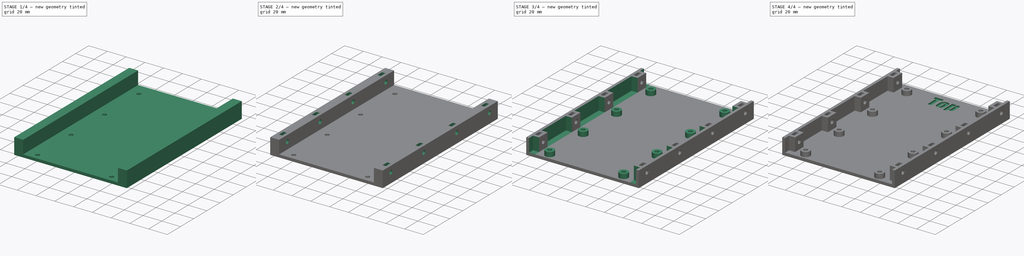
[diagram: build sequence overview — one tinted view per stage of 4, left to right]
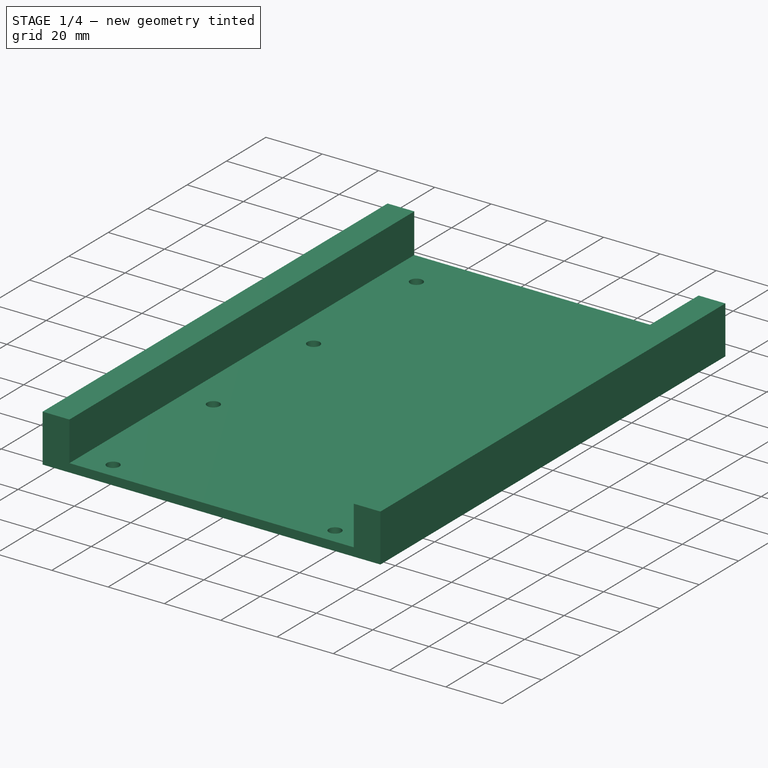
[diagram: stage 1 of 4 — iso view after this stage's code; geometry added in this stage tinted green]
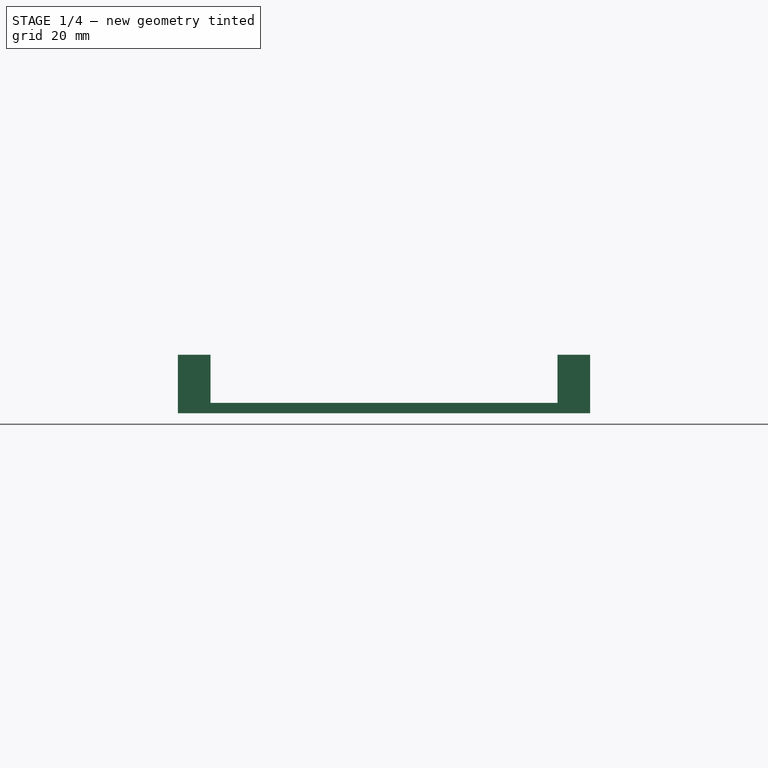
[diagram: stage 1 of 4 — front view after this stage's code; geometry added in this stage tinted green]
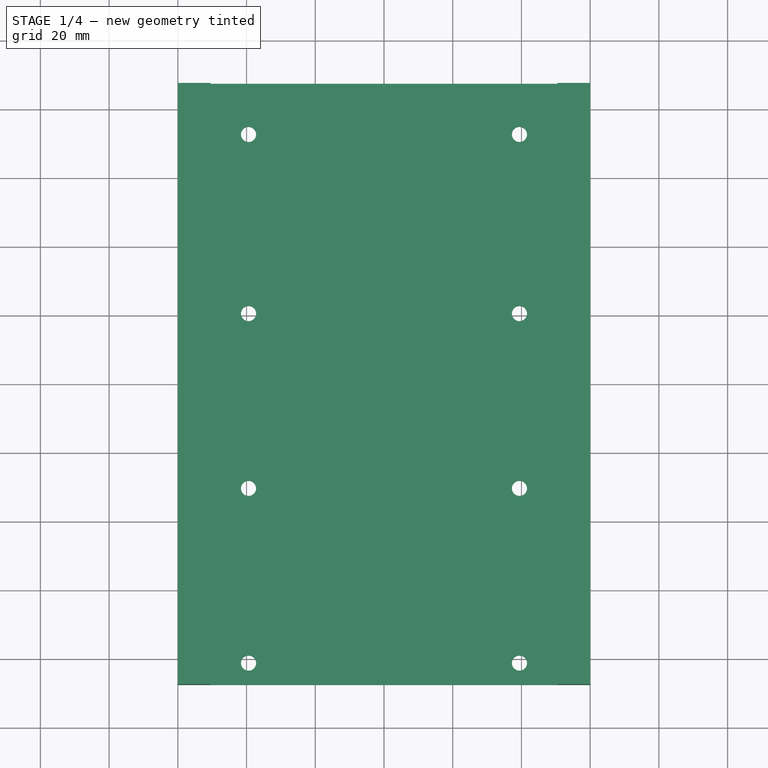
[diagram: stage 1 of 4 — top view after this stage's code; geometry added in this stage tinted green]
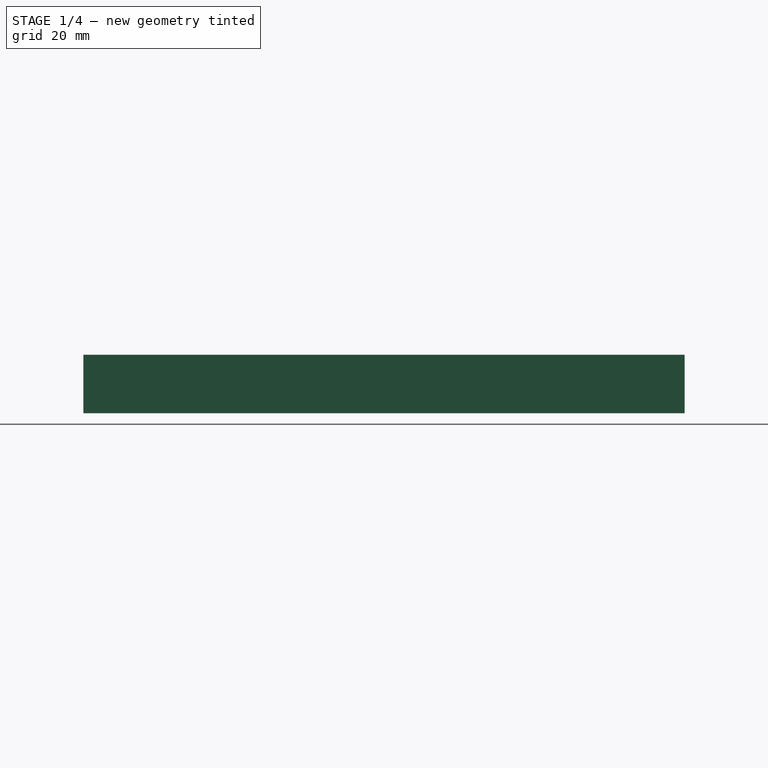
[diagram: stage 1 of 4 — right view after this stage's code; geometry added in this stage tinted green]
FCSTD DOCUMENT  (FreeCAD 0.19R14555 (Git shallow))
Label: V3 Basetray
License: All rights reserved
LicenseURL: http://en.wikipedia.org/wiki/All_rights_reserved
objects: Sketcher::SketchObject×7, PartDesign::Pocket×6, PartDesign::Mirrored×3, PartDesign::Pad×2, PartDesign::Chamfer×2, Part::Part2DObjectPython×1, PartDesign::Body×1
note: 32 computed .brp shape members not serialized (recipe doc carries the construction recipe); baked Part::Feature solids carry a one-line shape summary decoded from their .brp

FEATURE [Sketcher::SketchObject] Sketch  label="Base tray footprint"
  FullyConstrained = true
  MapMode = 5
  Support = -> [XY_Plane]
  sketch-geometry (4):
    g0: LineSegment StartX=-60 StartY=87.5 StartZ=0 EndX=60 EndY=87.5 EndZ=0
    g1: LineSegment StartX=60 StartY=87.5 StartZ=0 EndX=60 EndY=-87.5 EndZ=0
    g2: LineSegment StartX=60 StartY=-87.5 StartZ=0 EndX=-60 EndY=-87.5 EndZ=0
    g3: LineSegment StartX=-60 StartY=-87.5 StartZ=0 EndX=-60 EndY=87.5 EndZ=0
  constraints (10):
    c: Coincident(g0,g1)
    c: Coincident(g1,g2)
    c: Coincident(g2,g3)
    c: Coincident(g3,g0)
    c: Horizontal(g2)
    c: Vertical(g1)
    c: Symmetric(g0,g0,g-2)
    c: Symmetric(g0,g2,g-1)
    c: Distance(g0) = 120
    c: Distance(g3) = 175
FEATURE [PartDesign::Pad] Pad  label="Make Basetray"
  Direction = (1,1,1)
  Length = 17
  Length2 = 100
  Profile = -> Sketch
  Type = 0
FEATURE [Sketcher::SketchObject] Sketch001  label="Base Tray Hole pattern"
  ExternalGeometry = -> [Pad]
  FullyConstrained = true
  MapMode = 5
  Placement = pos=(0,0,17) rot=(0,0,1;0rad)
  Support = -> [Pad]
  sketch-geometry (11):
    g0: Circle CenterX=-39.425 CenterY=-81.1382 CenterZ=0 NormalX=0 NormalY=0 NormalZ=1 AngleXU=0 Radius=2.2
    g1: Circle CenterX=-39.425 CenterY=-30.2682 CenterZ=0 NormalX=0 NormalY=0 NormalZ=1 AngleXU=0 Radius=2.2
    g2: Circle CenterX=-39.425 CenterY=20.6018 CenterZ=0 NormalX=0 NormalY=0 NormalZ=1 AngleXU=0 Radius=2.2
    g3: Circle CenterX=-39.425 CenterY=72.7458 CenterZ=0 NormalX=0 NormalY=0 NormalZ=1 AngleXU=0 Radius=2.2
    g4: Circle CenterX=39.425 CenterY=72.7458 CenterZ=0 NormalX=0 NormalY=0 NormalZ=1 AngleXU=0 Radius=2.2
    g5: Circle CenterX=39.425 CenterY=20.6018 CenterZ=0 NormalX=0 NormalY=0 NormalZ=1 AngleXU=0 Radius=2.2
    g6: Circle CenterX=39.425 CenterY=-30.2682 CenterZ=0 NormalX=0 NormalY=0 NormalZ=1 AngleXU=0 Radius=2.2
    g7: Circle CenterX=39.425 CenterY=-81.1382 CenterZ=0 NormalX=0 NormalY=0 NormalZ=1 AngleXU=0 Radius=2.2
    g8: LineSegment StartX=-39.425 StartY=-81.1382 StartZ=0 EndX=-39.425 EndY=-30.2682 EndZ=0
    g9: LineSegment StartX=-39.425 StartY=-30.2682 StartZ=0 EndX=-39.425 EndY=20.6018 EndZ=0
    g10: LineSegment StartX=-39.425 StartY=20.6018 StartZ=0 EndX=-39.425 EndY=72.7458 EndZ=0
  constraints (26):
    c: Radius(g0) = 2.2
    c: Equal(g0,g7)
    c: Equal(g0,g1)
    c: Equal(g0,g6)
    c: Equal(g0,g5)
    c: Equal(g0,g2)
    c: Equal(g0,g3)
    c: Equal(g0,g4)
    c: Symmetric(g3,g4,g-2)
    c: Symmetric(g2,g5,g-2)
    c: Symmetric(g1,g6,g-2)
    c: Symmetric(g0,g7,g-2)
    c: Coincident(g8,g9)
    c: Coincident(g9,g10)
    c: Coincident(g10,g3)
    c: Coincident(g9,g2)
    c: Coincident(g8,g1)
    c: Coincident(g0,g8)
    c: DistanceY(g-3,g0) = 6.3618
    c: DistanceX(g0,g7) = 78.85
    c: Vertical(g8)
    c: Vertical(g9)
    c: Vertical(g10)
    c: Distance(g8) = 50.87
    c: Distance(g9) = 50.87
    c: Distance(g10) = 52.144
FEATURE [PartDesign::Pocket] Pocket  label="Make PCB Mounting Holes"
  BaseFeature = -> Pad
  Length = 5
  Length2 = 100
  Profile = -> Sketch001
  Type = 1
FEATURE [Sketcher::SketchObject] Sketch002  label="Center space cutout spec for PCB"
  ExternalGeometry = -> [Pocket]
  FullyConstrained = true
  MapMode = 5
  Placement = pos=(0,-87.5,0) rot=(1,0,0;1.5708rad)
  Support = -> [Pocket]
  sketch-geometry (4):
    g0: LineSegment StartX=-50.5 StartY=17 StartZ=0 EndX=50.5 EndY=17 EndZ=0
    g1: LineSegment StartX=50.5 StartY=17 StartZ=0 EndX=50.5 EndY=3 EndZ=0
    g2: LineSegment StartX=50.5 StartY=3 StartZ=0 EndX=-50.5 EndY=3 EndZ=0
    g3: LineSegment StartX=-50.5 StartY=3 StartZ=0 EndX=-50.5 EndY=17 EndZ=0
  constraints (11):
    c: Coincident(g0,g1)
    c: Coincident(g1,g2)
    c: Coincident(g2,g3)
    c: Coincident(g3,g0)
    c: Horizontal(g0)
    c: Vertical(g1)
    c: Vertical(g3)
    c: DistanceY(g-3,g1) = 3
    c: Symmetric(g2,g1,g-2)
    c: DistanceX(g1,g-3) = 9.5
    c: PointOnObject(g0,g-4)
FEATURE [PartDesign::Pocket] Pocket001  label="Make center space for PCB"
  BaseFeature = -> Pocket
  Length = 5
  Length2 = 100
  Profile = -> Sketch002
  Type = 1
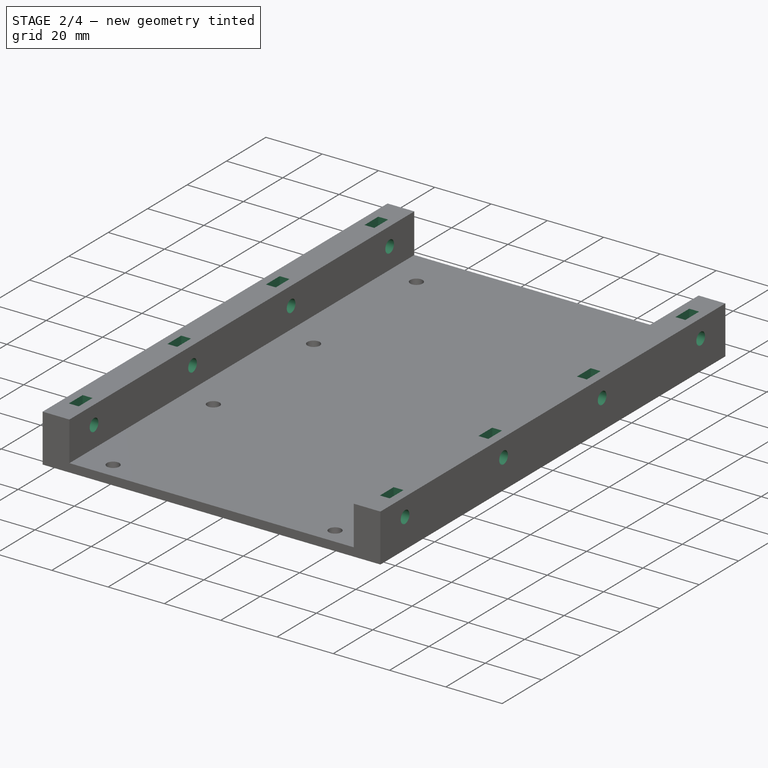
[diagram: stage 2 of 4 — iso view after this stage's code; geometry added in this stage tinted green]
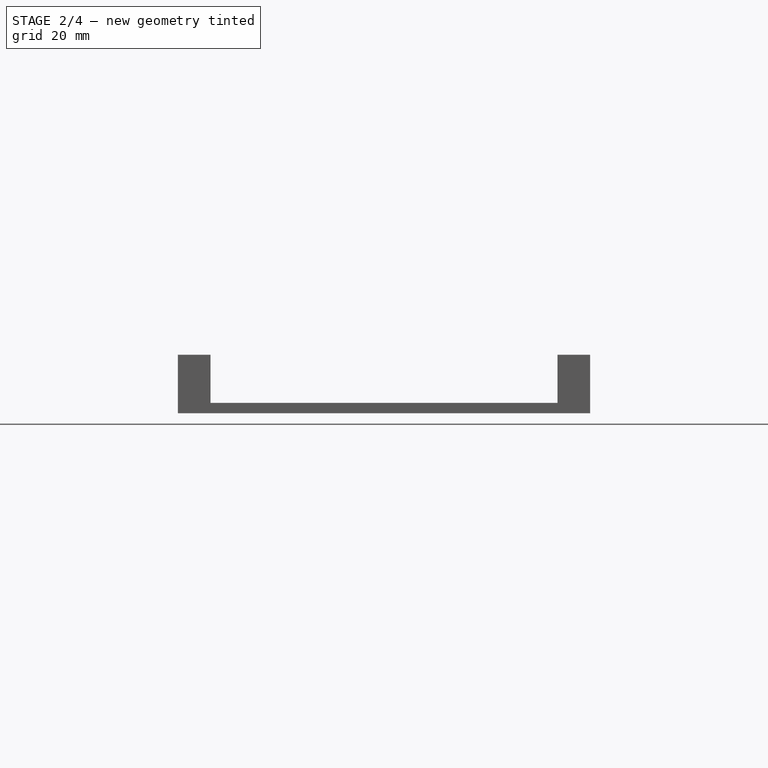
[diagram: stage 2 of 4 — front view after this stage's code; geometry added in this stage tinted green]
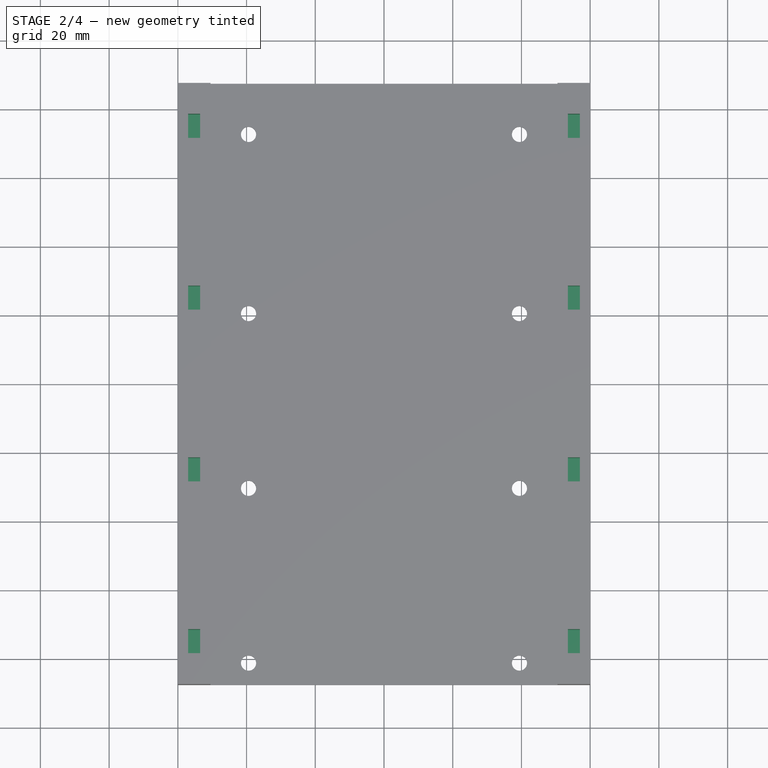
[diagram: stage 2 of 4 — top view after this stage's code; geometry added in this stage tinted green]
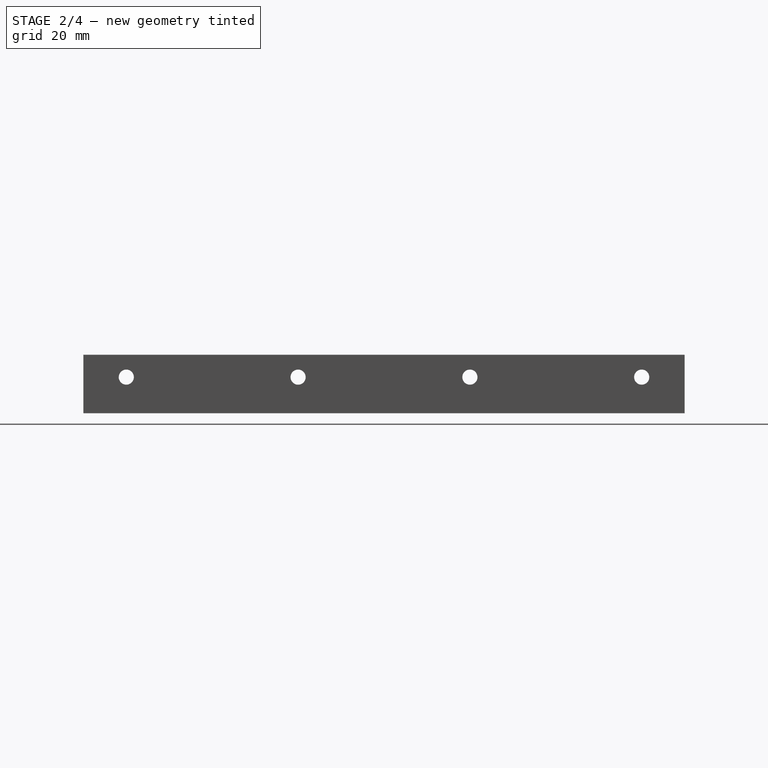
[diagram: stage 2 of 4 — right view after this stage's code; geometry added in this stage tinted green]
FEATURE [Sketcher::SketchObject] Sketch003  label="Side panel screwhole spec"
  FullyConstrained = true
  MapMode = 5
  Placement = pos=(-60,0,0) rot=(0.57735,-0.57735,-0.57735;2.0944rad)
  Support = -> [Pocket001]
  sketch-geometry (7):
    g0: Circle CenterX=75 CenterY=10.5 CenterZ=0 NormalX=0 NormalY=0 NormalZ=1 AngleXU=0 Radius=2.2
    g1: Circle CenterX=25 CenterY=10.5 CenterZ=0 NormalX=0 NormalY=0 NormalZ=1 AngleXU=0 Radius=2.2
    g2: Circle CenterX=-25 CenterY=10.5 CenterZ=0 NormalX=0 NormalY=0 NormalZ=1 AngleXU=0 Radius=2.2
    g3: Circle CenterX=-75 CenterY=10.5 CenterZ=0 NormalX=0 NormalY=0 NormalZ=1 AngleXU=0 Radius=2.2
    g4: LineSegment StartX=75 StartY=10.5 StartZ=0 EndX=25 EndY=10.5 EndZ=0
    g5: LineSegment StartX=25 StartY=10.5 StartZ=0 EndX=-25 EndY=10.5 EndZ=0
    g6: LineSegment StartX=-25 StartY=10.5 StartZ=0 EndX=-75 EndY=10.5 EndZ=0
  constraints (17):
    c: Coincident(g4,g5)
    c: Coincident(g5,g6)
    c: Equal(g6,g5)
    c: Equal(g5,g4)
    c: Horizontal(g6)
    c: Horizontal(g4)
    c: Coincident(g6,g3)
    c: Coincident(g5,g2)
    c: Coincident(g4,g1)
    c: Coincident(g4,g0)
    c: Distance(g4) = 50
    c: DistanceY(g0) = 10.5
    c: Symmetric(g3,g0,g-2)
    c: Radius(g3) = 2.2
    c: Equal(g3,g2)
    c: Equal(g3,g1)
    c: Equal(g3,g0)
FEATURE [PartDesign::Pocket] Pocket002  label="Add side panel screwholes"
  BaseFeature = -> Pocket001
  Length = 5
  Length2 = 100
  Profile = -> Sketch003
  Type = 1
FEATURE [Sketcher::SketchObject] Sketch004  label="Nut trap pocket spec"
  ExternalGeometry = -> [Pocket002]
  FullyConstrained = true
  MapMode = 5
  Placement = pos=(0,0,17) rot=(0,0,1;0rad)
  Support = -> [Pocket002]
  sketch-geometry (18):
    g0: LineSegment StartX=-57 StartY=28.5 StartZ=0 EndX=-53.5 EndY=28.5 EndZ=0
    g1: LineSegment StartX=-53.5 StartY=28.5 StartZ=0 EndX=-53.5 EndY=21.5 EndZ=0
    g2: LineSegment StartX=-53.5 StartY=21.5 StartZ=0 EndX=-57 EndY=21.5 EndZ=0
    g3: LineSegment StartX=-57 StartY=21.5 StartZ=0 EndX=-57 EndY=28.5 EndZ=0
    g4: LineSegment StartX=-57 StartY=-21.5 StartZ=0 EndX=-53.5 EndY=-21.5 EndZ=0
    g5: LineSegment StartX=-53.5 StartY=-21.5 StartZ=0 EndX=-53.5 EndY=-28.5 EndZ=0
    g6: LineSegment StartX=-53.5 StartY=-28.5 StartZ=0 EndX=-57 EndY=-28.5 EndZ=0
    g7: LineSegment StartX=-57 StartY=-28.5 StartZ=0 EndX=-57 EndY=-21.5 EndZ=0
    g8: LineSegment StartX=-57 StartY=-71.5 StartZ=0 EndX=-53.5 EndY=-71.5 EndZ=0
    g9: LineSegment StartX=-53.5 StartY=-71.5 StartZ=0 EndX=-53.5 EndY=-78.5 EndZ=0
    g10: LineSegment StartX=-53.5 StartY=-78.5 StartZ=0 EndX=-57 EndY=-78.5 EndZ=0
    g11: LineSegment StartX=-57 StartY=-78.5 StartZ=0 EndX=-57 EndY=-71.5 EndZ=0
    g12: LineSegment StartX=-57 StartY=78.5 StartZ=0 EndX=-53.5 EndY=78.5 EndZ=0
    g13: LineSegment StartX=-53.5 StartY=78.5 StartZ=0 EndX=-53.5 EndY=71.5 EndZ=0
    g14: LineSegment StartX=-53.5 StartY=71.5 StartZ=0 EndX=-57 EndY=71.5 EndZ=0
    g15: LineSegment StartX=-57 StartY=71.5 StartZ=0 EndX=-57 EndY=78.5 EndZ=0
    g16: LineSegment StartX=-55.25 StartY=87.5 StartZ=0 EndX=-55.25 EndY=78.5 EndZ=0
    g17: LineSegment StartX=-53.5 StartY=71.5 StartZ=0 EndX=-53.5 EndY=28.5 EndZ=0
  constraints (50):
    c: Coincident(g0,g1)
    c: Coincident(g1,g2)
    c: Coincident(g2,g3)
    c: Coincident(g3,g0)
    c: Horizontal(g0)
    c: Horizontal(g2)
    c: Vertical(g1)
    c: Vertical(g3)
    c: Coincident(g4,g5)
    c: Coincident(g5,g6)
    c: Coincident(g6,g7)
    c: Coincident(g7,g4)
    c: Horizontal(g4)
    c: Horizontal(g6)
    c: Vertical(g5)
    c: Vertical(g7)
    c: Coincident(g8,g9)
    c: Coincident(g9,g10)
    c: Coincident(g10,g11)
    c: Coincident(g11,g8)
    c: Horizontal(g8)
    c: Horizontal(g10)
    c: Vertical(g9)
    c: Vertical(g11)
    c: Coincident(g12,g13)
    c: Coincident(g13,g14)
    c: Coincident(g14,g15)
    c: Coincident(g15,g12)
    c: Horizontal(g14)
    c: Vertical(g13)
    c: Vertical(g15)
    c: Equal(g12,g0)
    c: Equal(g0,g4)
    c: Equal(g4,g8)
    c: Equal(g9,g5)
    c: Equal(g5,g13)
    c: Equal(g13,g1)
    c: Distance(g13) = 7
    c: Distance(g12) = 3.5
    c: Symmetric(g-3,g-3,g16)
    c: PointOnObject(g16,g-3)
    c: DistanceY(g0,g12) = 50
    c: Symmetric(g0,g5,g-1)
    c: DistanceY(g5,g1) = 50
    c: Coincident(g17,g13)
    c: Coincident(g17,g0)
    c: Vertical(g17)
    c: Symmetric(g12,g9,g-1)
    c: PointOnObject(g16,g12)
    c: Symmetric(g12,g12,g16)
FEATURE [PartDesign::Pocket] Pocket003  label="Add nut trap pockets"
  BaseFeature = -> Pocket002
  Length = 10.7
  Length2 = 100
  Profile = -> Sketch004
  Type = 0
FEATURE [PartDesign::Mirrored] Mirrored  label="Add nut trap pockets to other side"
  BaseFeature = -> Pocket003
  MirrorPlane = -> Sketch004 [V_Axis]
  Originals = -> [Pocket003]
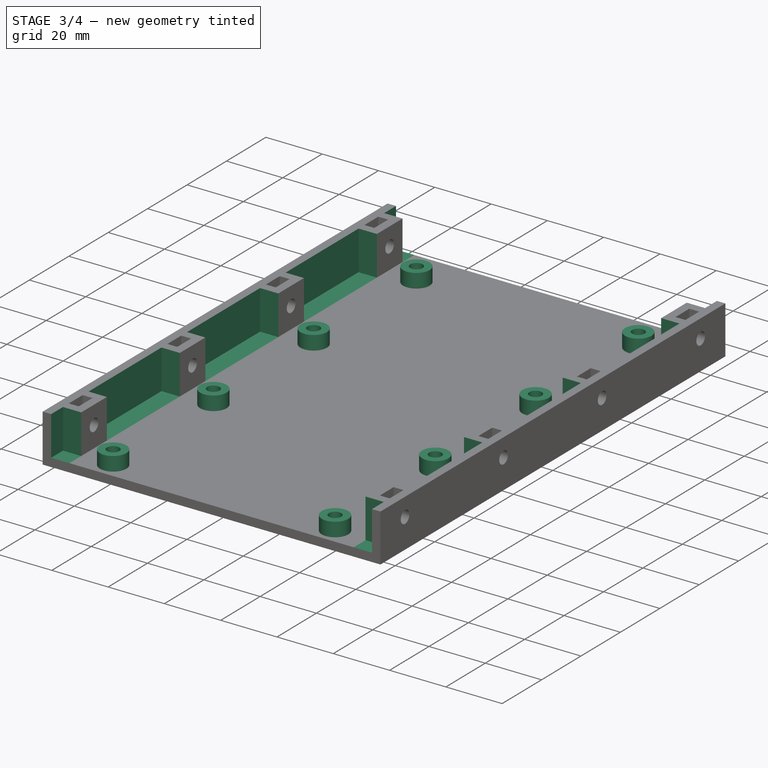
[diagram: stage 3 of 4 — iso view after this stage's code; geometry added in this stage tinted green]
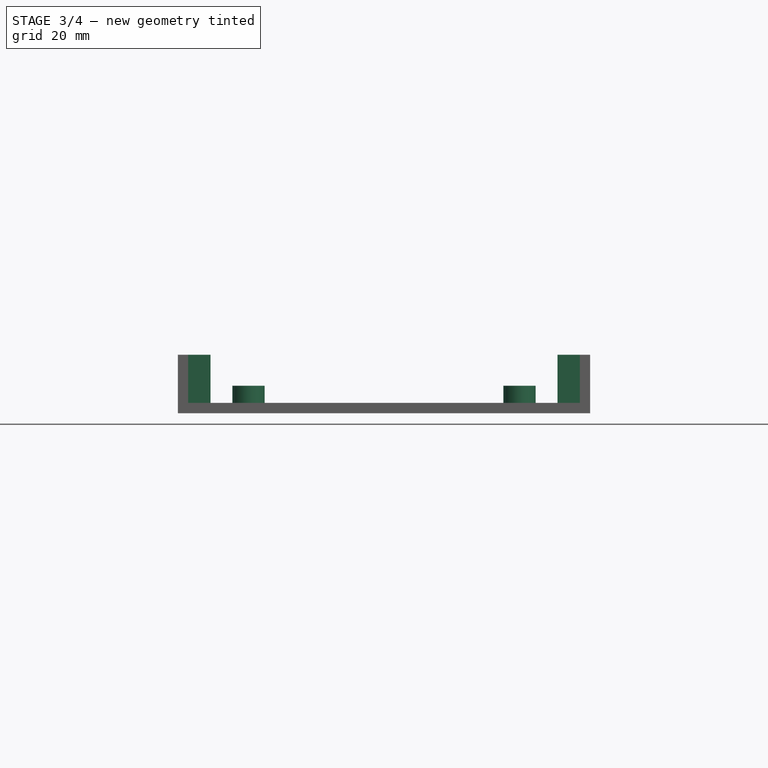
[diagram: stage 3 of 4 — front view after this stage's code; geometry added in this stage tinted green]
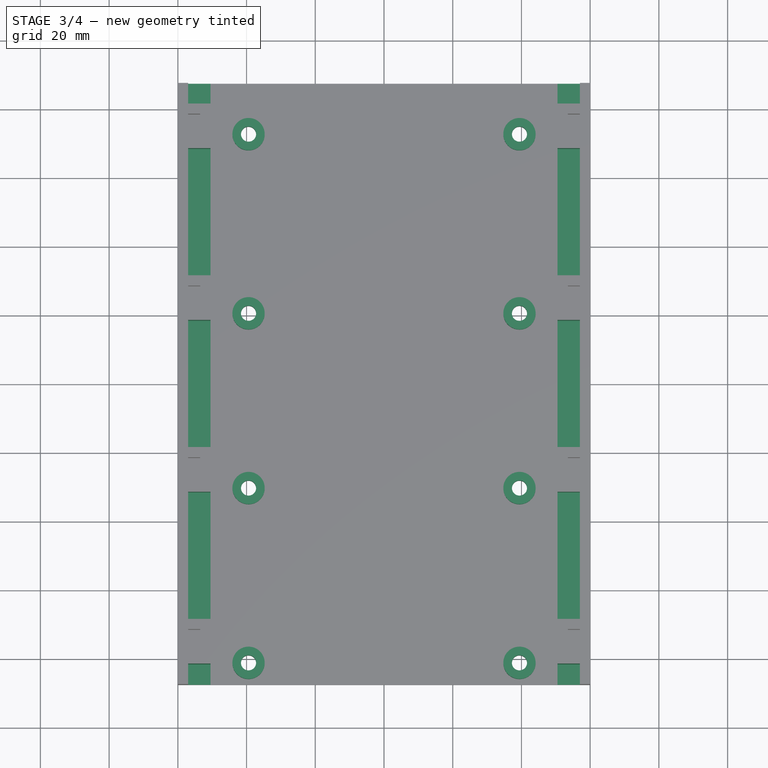
[diagram: stage 3 of 4 — top view after this stage's code; geometry added in this stage tinted green]
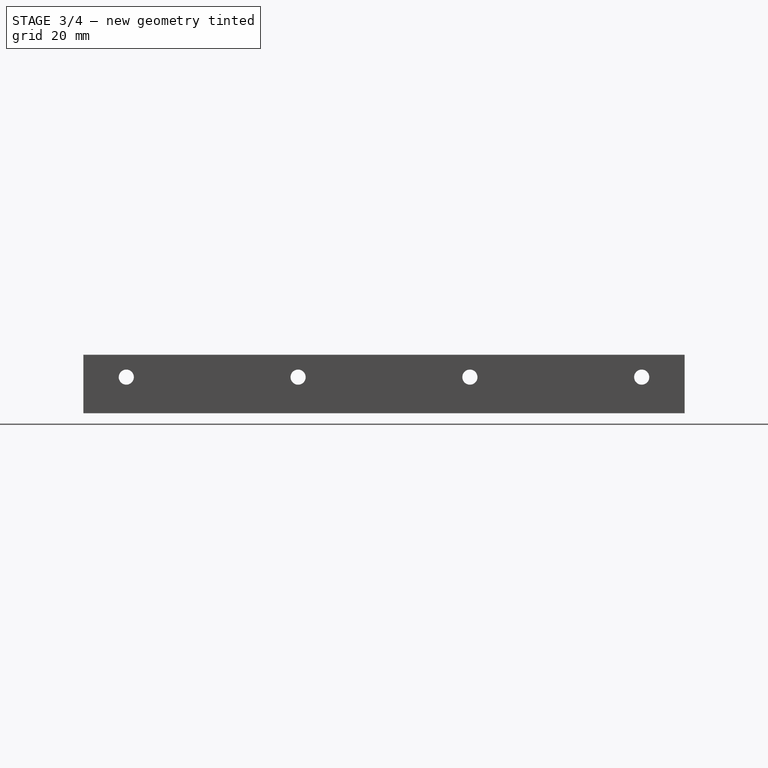
[diagram: stage 3 of 4 — right view after this stage's code; geometry added in this stage tinted green]
FEATURE [Sketcher::SketchObject] Sketch005  label="Waste material trim tool"
  ExternalGeometry = -> [Mirrored]
  FullyConstrained = true
  MapMode = 5
  Placement = pos=(0,0,17) rot=(0,0,1;0rad)
  Support = -> [Mirrored]
  sketch-geometry (20):
    g0: LineSegment StartX=-57 StartY=-81.5 StartZ=0 EndX=-50.5 EndY=-81.5 EndZ=0
    g1: LineSegment StartX=-50.5 StartY=-81.5 StartZ=0 EndX=-50.5 EndY=-87.5 EndZ=0
    g2: LineSegment StartX=-50.5 StartY=-87.5 StartZ=0 EndX=-57 EndY=-87.5 EndZ=0
    g3: LineSegment StartX=-57 StartY=-87.5 StartZ=0 EndX=-57 EndY=-81.5 EndZ=0
    g4: LineSegment StartX=-57 StartY=87.5 StartZ=0 EndX=-50.5 EndY=87.5 EndZ=0
    g5: LineSegment StartX=-50.5 StartY=87.5 StartZ=0 EndX=-50.5 EndY=81.5 EndZ=0
    g6: LineSegment StartX=-50.5 StartY=81.5 StartZ=0 EndX=-57 EndY=81.5 EndZ=0
    g7: LineSegment StartX=-57 StartY=81.5 StartZ=0 EndX=-57 EndY=87.5 EndZ=0
    g8: LineSegment StartX=-57 StartY=68.5 StartZ=0 EndX=-50.5 EndY=68.5 EndZ=0
    g9: LineSegment StartX=-50.5 StartY=68.5 StartZ=0 EndX=-50.5 EndY=31.5 EndZ=0
    g10: LineSegment StartX=-50.5 StartY=31.5 StartZ=0 EndX=-57 EndY=31.5 EndZ=0
    g11: LineSegment StartX=-57 StartY=31.5 StartZ=0 EndX=-57 EndY=68.5 EndZ=0
    g12: LineSegment StartX=-57 StartY=-31.5 StartZ=0 EndX=-50.5 EndY=-31.5 EndZ=0
    g13: LineSegment StartX=-50.5 StartY=-31.5 StartZ=0 EndX=-50.5 EndY=-68.5 EndZ=0
    g14: LineSegment StartX=-50.5 StartY=-68.5 StartZ=0 EndX=-57 EndY=-68.5 EndZ=0
    g15: LineSegment StartX=-57 StartY=-68.5 StartZ=0 EndX=-57 EndY=-31.5 EndZ=0
    g16: LineSegment StartX=-57 StartY=18.5 StartZ=0 EndX=-50.5 EndY=18.5 EndZ=0
    g17: LineSegment StartX=-50.5 StartY=18.5 StartZ=0 EndX=-50.5 EndY=-18.5 EndZ=0
    g18: LineSegment StartX=-50.5 StartY=-18.5 StartZ=0 EndX=-57 EndY=-18.5 EndZ=0
    g19: LineSegment StartX=-57 StartY=-18.5 StartZ=0 EndX=-57 EndY=18.5 EndZ=0
  constraints (56):
    c: Coincident(g0,g1)
    c: Coincident(g1,g2)
    c: Coincident(g2,g3)
    c: Coincident(g3,g0)
    c: Horizontal(g0)
    c: Horizontal(g2)
    c: Vertical(g1)
    c: Vertical(g3)
    c: Coincident(g1,g-3)
    c: DistanceX(g-4,g2) = 3
    c: DistanceY(g0,g-5) = 3
    c: Coincident(g4,g5)
    c: Coincident(g5,g6)
    c: Coincident(g6,g7)
    c: Coincident(g7,g4)
    c: Horizontal(g4)
    c: Horizontal(g6)
    c: Vertical(g5)
    c: Vertical(g7)
    c: Coincident(g4,g-3)
    c: Equal(g5,g1)
    c: Equal(g0,g4)
    c: Coincident(g8,g9)
    c: Coincident(g9,g10)
    c: Coincident(g10,g11)
    c: Coincident(g11,g8)
    c: Horizontal(g8)
    c: Horizontal(g10)
    c: Vertical(g9)
    c: Vertical(g11)
    c: Coincident(g12,g13)
    c: Coincident(g13,g14)
    c: Coincident(g14,g15)
    c: Coincident(g15,g12)
    c: Horizontal(g12)
    c: Horizontal(g14)
    c: Vertical(g13)
    c: Vertical(g15)
    c: Equal(g8,g4)
    c: Equal(g4,g12)
    c: PointOnObject(g8,g-3)
    c: DistanceY(g-7,g10) = 3
    c: DistanceY(g8,g-6) = 3
    c: Equal(g11,g15)
    c: Symmetric(g12,g9,g-1)
    c: Coincident(g16,g17)
    c: Coincident(g17,g18)
    c: Coincident(g18,g19)
    c: Coincident(g19,g16)
    c: Horizontal(g16)
    c: Horizontal(g18)
    c: Vertical(g17)
    c: Equal(g18,g12)
    c: Equal(g17,g13)
    c: PointOnObject(g17,g-3)
    c: Symmetric(g16,g18,g-1)
FEATURE [PartDesign::Pocket] Pocket004  label="Trim waste material from side around nut traps"
  BaseFeature = -> Mirrored
  Length = 0
  Length2 = 100
  Profile = -> Sketch005
  Type = 3
  UpToFace = -> Mirrored [Face6]
FEATURE [PartDesign::Mirrored] Mirrored001  label="Trim waste material from other side aound nut traps"
  BaseFeature = -> Pocket004
  MirrorPlane = -> Sketch005 [V_Axis]
  Originals = -> [Pocket004]
FEATURE [Sketcher::SketchObject] Sketch006  label="PCB Pillars spec"
  ExternalGeometry = -> [Mirrored001]
  FullyConstrained = true
  MapMode = 5
  Placement = pos=(0,7e-16,3) rot=(0,0,1;0rad)
  Support = -> [Mirrored001]
  sketch-geometry (9):
    g0: LineSegment StartX=-39.425 StartY=70.5458 StartZ=0 EndX=-39.425 EndY=68.0458 EndZ=0
    g1: Circle CenterX=-39.425 CenterY=-81.1382 CenterZ=0 NormalX=0 NormalY=0 NormalZ=1 AngleXU=0 Radius=2.2
    g2: Circle CenterX=-39.425 CenterY=-30.2682 CenterZ=0 NormalX=0 NormalY=0 NormalZ=1 AngleXU=0 Radius=2.2
    g3: Circle CenterX=-39.425 CenterY=20.6018 CenterZ=0 NormalX=0 NormalY=0 NormalZ=1 AngleXU=0 Radius=2.2
    g4: Circle CenterX=-39.425 CenterY=72.7458 CenterZ=0 NormalX=0 NormalY=0 NormalZ=1 AngleXU=0 Radius=2.2
    g5: Circle CenterX=-39.425 CenterY=72.7458 CenterZ=0 NormalX=0 NormalY=0 NormalZ=1 AngleXU=0 Radius=4.7
    g6: Circle CenterX=-39.425 CenterY=20.6018 CenterZ=0 NormalX=0 NormalY=0 NormalZ=1 AngleXU=0 Radius=4.7
    g7: Circle CenterX=-39.425 CenterY=-30.2682 CenterZ=0 NormalX=0 NormalY=0 NormalZ=1 AngleXU=0 Radius=4.7
    g8: Circle CenterX=-39.425 CenterY=-81.1382 CenterZ=0 NormalX=0 NormalY=0 NormalZ=1 AngleXU=0 Radius=4.7
  constraints (19):
    c: Vertical(g0)
    c: Distance(g0) = 2.5
    c: Coincident(g-3,g4)
    c: Coincident(g-4,g3)
    c: Coincident(g-5,g2)
    c: Coincident(g-6,g1)
    c: Equal(g1,g2)
    c: Equal(g2,g3)
    c: Equal(g3,g4)
    c: Equal(g4,g-3)
    c: Perpendicular(g0,g4) = 1.5708
    c: Coincident(g1,g8)
    c: Coincident(g2,g7)
    c: Coincident(g6,g3)
    c: PointOnObject(g0,g5)
    c: Coincident(g4,g5)
    c: Equal(g6,g5)
    c: Equal(g5,g7)
    c: Equal(g7,g8)
FEATURE [PartDesign::Pad] Pad001  label="Make PCB Pillars down one side"
  BaseFeature = -> Mirrored001
  Direction = (1,1,1)
  Length = 5
  Length2 = 100
  Profile = -> Sketch006
  Type = 0
FEATURE [PartDesign::Mirrored] Mirrored002  label="Add PCB Pillars to other side"
  BaseFeature = -> Pad001
  MirrorPlane = -> Sketch006 [V_Axis]
  Originals = -> [Pad001]
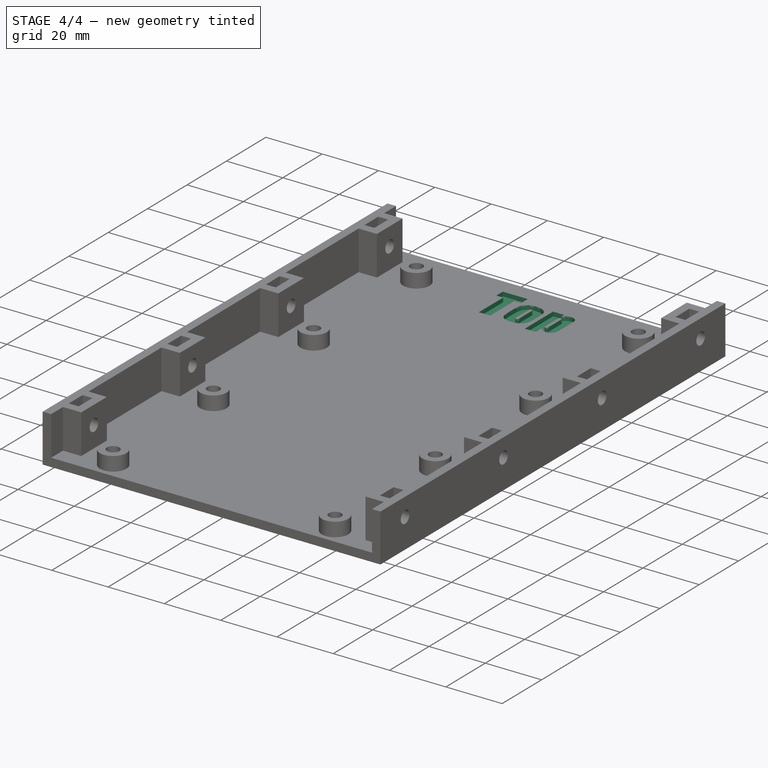
[diagram: stage 4 of 4 — iso view after this stage's code; geometry added in this stage tinted green]
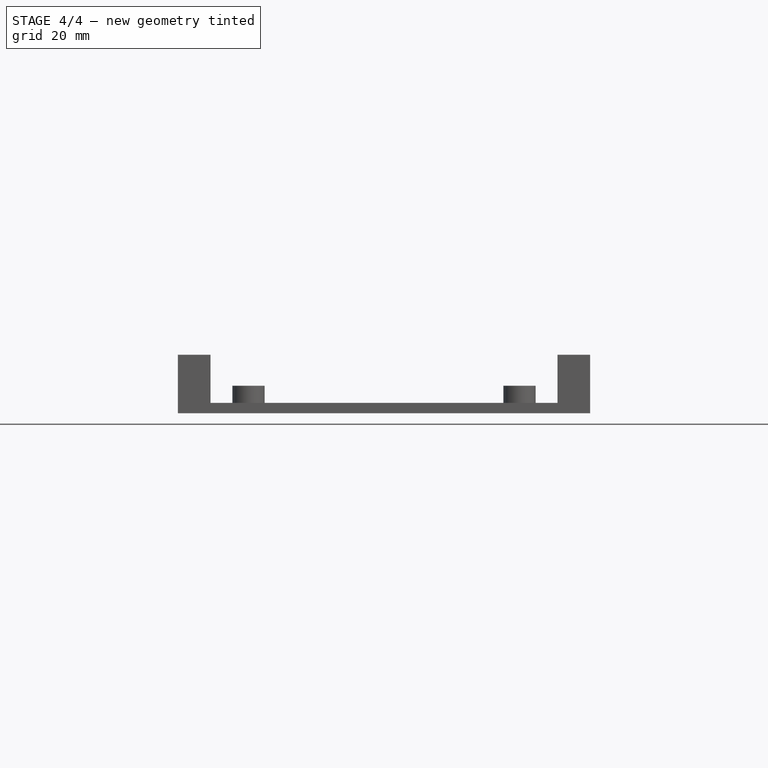
[diagram: stage 4 of 4 — front view after this stage's code; geometry added in this stage tinted green]
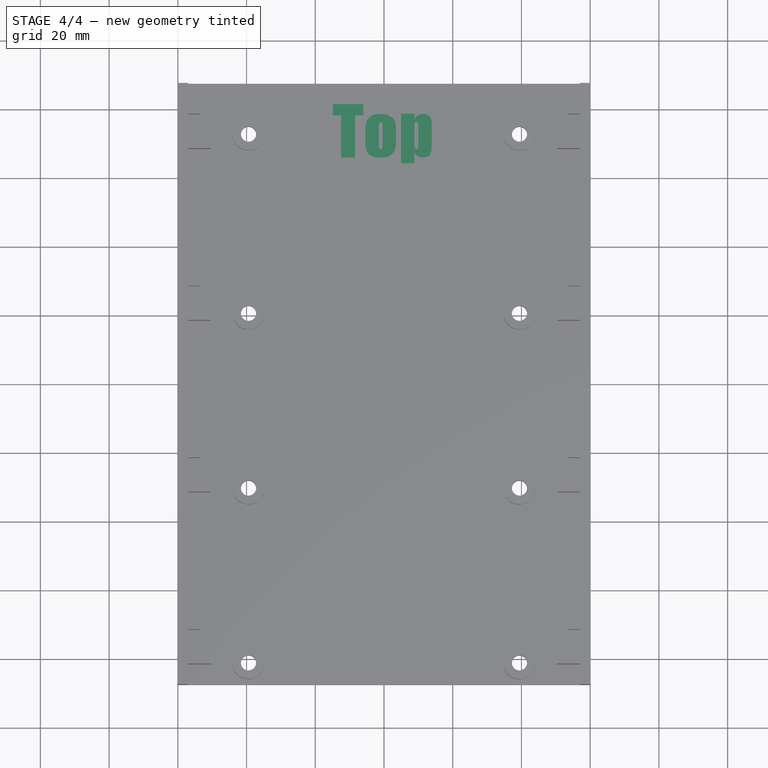
[diagram: stage 4 of 4 — top view after this stage's code; geometry added in this stage tinted green]
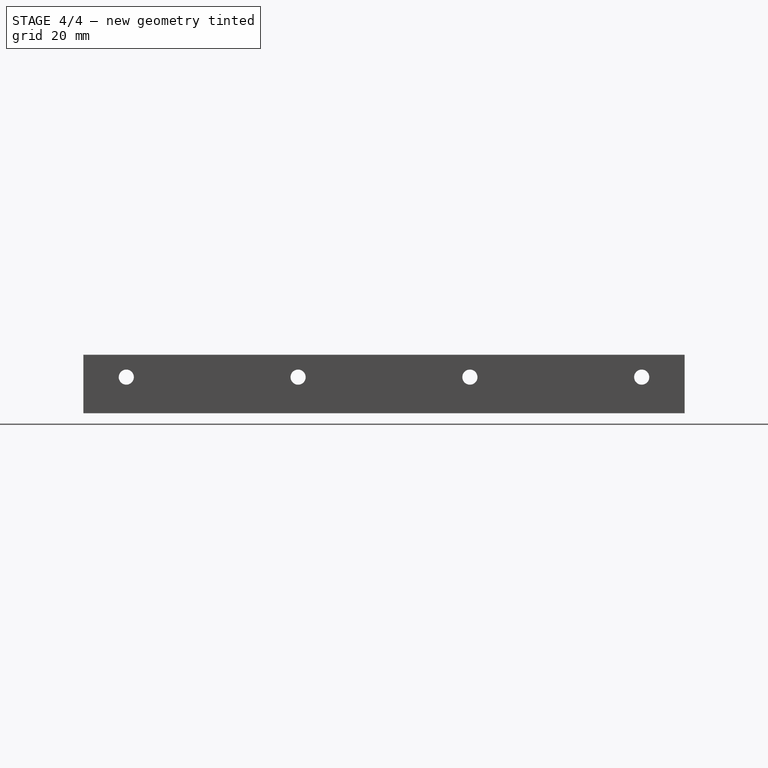
[diagram: stage 4 of 4 — right view after this stage's code; geometry added in this stage tinted green]
FEATURE [Part::Part2DObjectPython] ShapeString  label="Shapestring 'Top'"  # Draft 2D object (typed FeaturePython)
  FontFile = <userpath>/USERROOT/Fonts/impact.ttf
  Placement = pos=(-15,66,3) rot=(0,0,1;0rad)
  Size = 16
  String = Top
  Tracking = 0
FEATURE [PartDesign::Pocket] Pocket005  label="Add 'Top' to tray"
  BaseFeature = -> Mirrored002
  Length = 1.5
  Length2 = 100
  Profile = -> ShapeString
  Type = 0
FEATURE [PartDesign::Chamfer] Chamfer  label="Nut trap lead-in chamfer"
  Angle = 45
  Base = -> Pocket005 [Edge163,Edge164,Edge166,Edge165,Edge170,Edge168,Edge167,Edge169,Edge159,Edge160,Edge161,Edge162,Edge155,Edge156,Edge158,Edge157,Edge48,Edge47,Edge52,Edge51,Edge60,Edge59,Edge56,Edge55,Edge57,Edge54,Edge61,Edge58,Edge53,Edge50,Edge49,Edge46]
  BaseFeature = -> Pocket005
  ChamferType = 0
  FlipDirection = false
  Size = 0.5
  Size2 = 1
  SupportTransform = false
FEATURE [PartDesign::Chamfer] Chamfer001  label="Print aide bottom hole chamfers"
  Angle = 45
  Base = -> Pocket005 [Edge21,Edge20,Edge17,Edge16,Edge15,Edge14,Edge19,Edge18]
  BaseFeature = -> Pocket005
  ChamferType = 0
  FlipDirection = false
  Size = 0.5
  Size2 = 1
  SupportTransform = false
FEATURE [PartDesign::Body] Body
  Group = -> [Sketch,Pad,Sketch001,Pocket,Sketch002,Pocket001,Sketch003,Pocket002,Sketch004,Pocket003,Mirrored,Sketch005,Pocket004,Mirrored001,Sketch006,Pad001,Mirrored002,ShapeString,Pocket005,Chamfer,Chamfer001]
  Origin = -> Origin
  Tip = -> Chamfer001
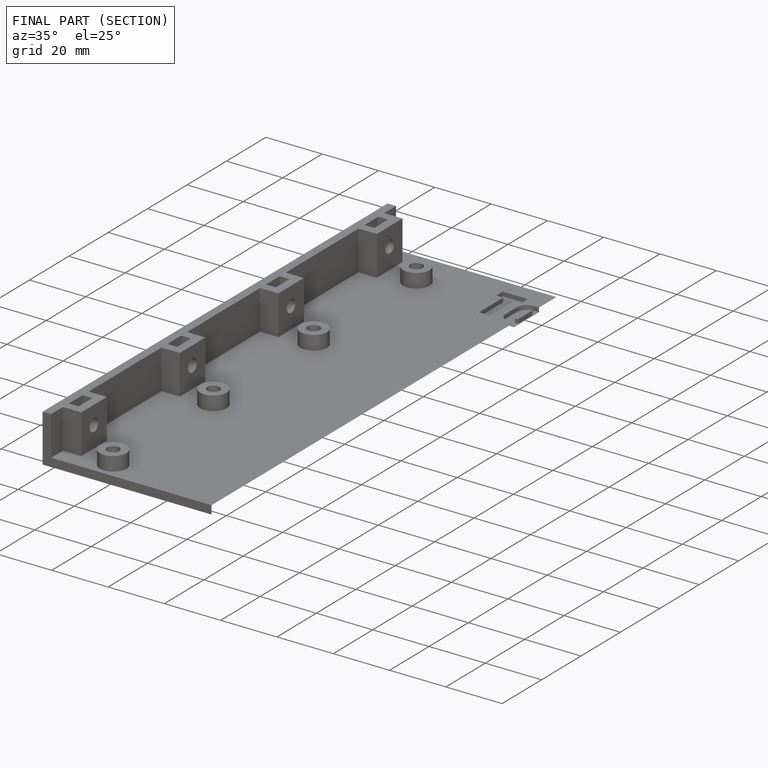
[diagram: finished part — half-section view (interior)]
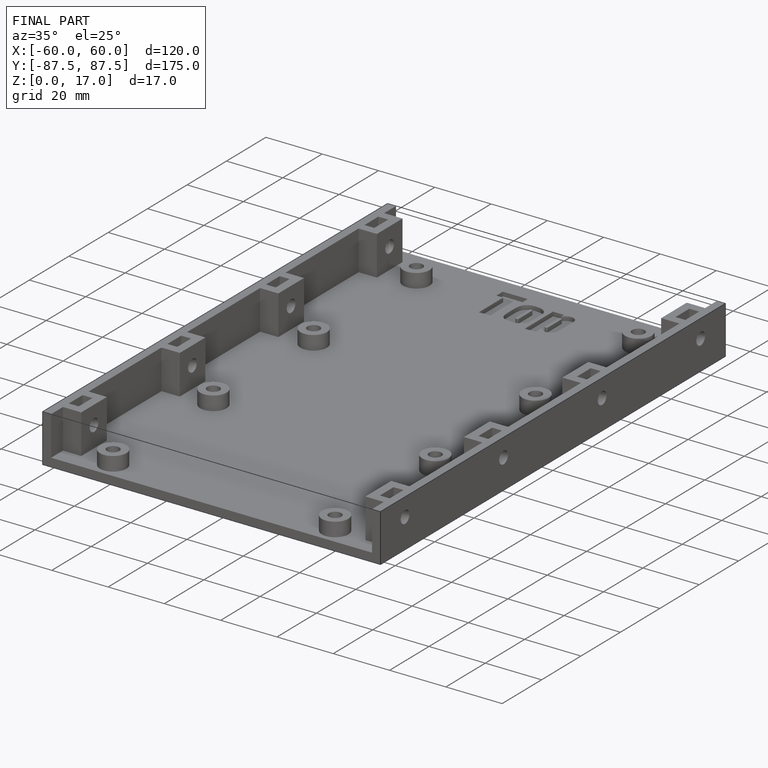
[diagram: finished part — iso view with bounding-box wireframe]
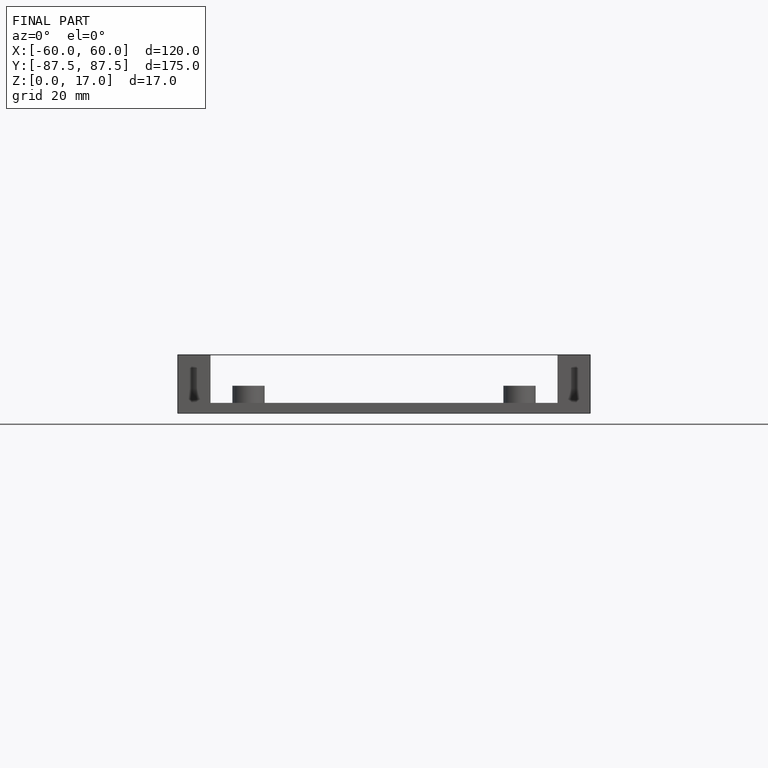
[diagram: finished part — front view with bounding-box wireframe]
